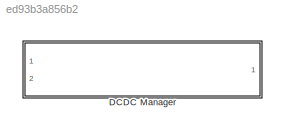
MODEL slx_ed93b3a856b2
KIND library
CONFIG AbsTol = auto
CONFIG EnableMultiTasking = off
CONFIG FixedStep = auto
CONFIG MaxStep = auto
CONFIG MinStep = auto
CONFIG RelTol = 1e-3
CONFIG SampleTimeConstraint = Unconstrained
CONFIG Solver = VariableStepAuto
CONFIG SolverName = VariableStepAuto
CONFIG StartTime = 0.0
CONFIG StopTime = 10.0
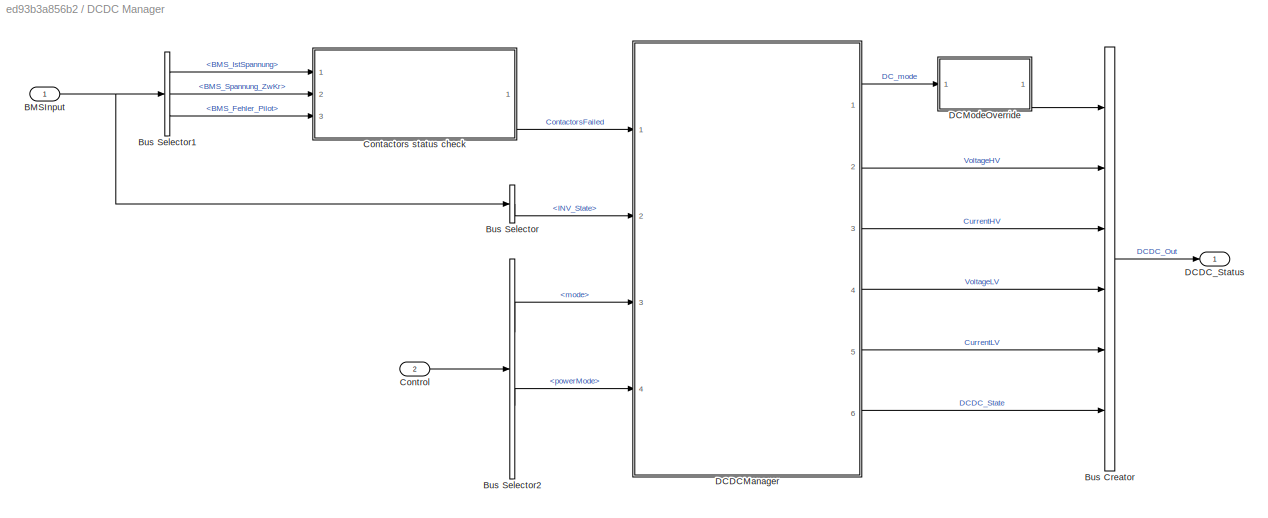
BLOCK [SubSystem] DCDC Manager
  Ports = [2, 1]
  RequestExecContextInheritance = off
  Variant = off
BLOCK [Inport] DCDC Manager/BMSInput
  IconDisplay = Port number
BLOCK [BusCreator] DCDC Manager/Bus Creator
  DisplayOption = bar
  InheritFromInputs = on
  Inputs = 6
  Ports = [6, 1]
BLOCK [BusSelector] DCDC Manager/Bus Selector
  OutputAsBus = off
  OutputSignals = from_CAN.fromHV_CAN.from_MCU.INV_VCU_01.INV_State
  Ports = [1, 1]
BLOCK [BusSelector] DCDC Manager/Bus Selector1
  OutputAsBus = off
  OutputSignals = from_CAN.fromHV_CAN.from_BMSHybrid.BMS_HYB_02.BMS_IstSpannung,from_CAN.fromHV_CAN.from_BMSHybrid.BMS_Spannung_ZwKr,from_CAN.fromHV_CAN.from_BMSHybrid.BMS_HYB_02.BMS_Fehler_Pilot
  Ports = [1, 3]
BLOCK [BusSelector] DCDC Manager/Bus Selector2
  OutputAsBus = off
  OutputSignals = mode,powerMode
  Ports = [1, 2]
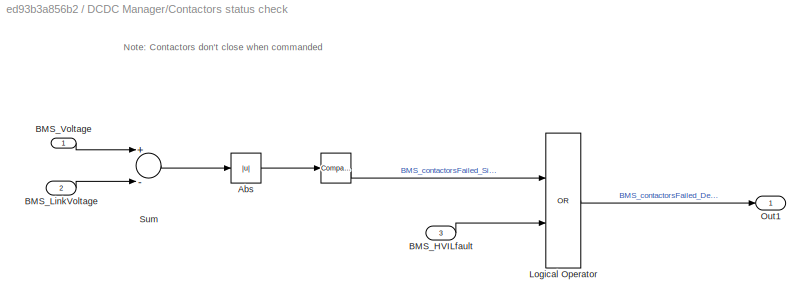
BLOCK [SubSystem] DCDC Manager/Contactors status check
  Ports = [3, 1]
  RequestExecContextInheritance = off
  Variant = off
BLOCK [Reference] DCDC Manager/Contactors status check/   REF=simulink/Logic and Bit
Operations/Compare
To Constant
  Ports = [1, 1]
  SourceBlock = simulink/Logic and Bit\nOperations/Compare\nTo Constant
  SourceProductBaseCode = SL
  SourceProductName = Simulink
  SourceType = Compare To Constant
BLOCK [Abs] DCDC Manager/Contactors status check/Abs
  SaturateOnIntegerOverflow = off
BLOCK [Inport] DCDC Manager/Contactors status check/BMS_HVILfault
  IconDisplay = Port number
  Port = 3
BLOCK [Inport] DCDC Manager/Contactors status check/BMS_LinkVoltage
  IconDisplay = Port number
  Port = 2
BLOCK [Inport] DCDC Manager/Contactors status check/BMS_Voltage
  IconDisplay = Port number
BLOCK [Logic] DCDC Manager/Contactors status check/Logical Operator
  AllPortsSameDT = off
  Operator = OR
  OutDataTypeStr = boolean
  Ports = [2, 1]
BLOCK [Outport] DCDC Manager/Contactors status check/Out1
  IconDisplay = Port number
BLOCK [Sum] DCDC Manager/Contactors status check/Sum
  InputSameDT = off
  Inputs = +-
  OutDataTypeStr = Inherit: Inherit via internal rule
  Ports = [2, 1]
  SaturateOnIntegerOverflow = off
BLOCK [Inport] DCDC Manager/Control
  IconDisplay = Port number
  Port = 2
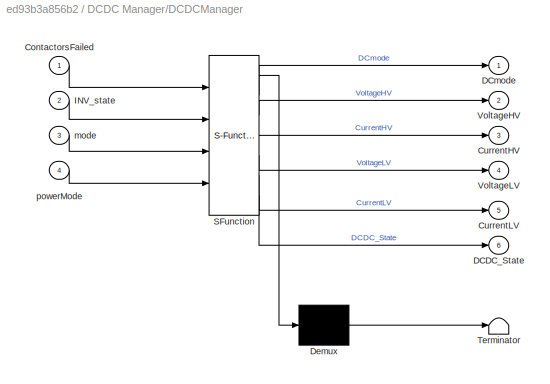
BLOCK [SubSystem] DCDC Manager/DCDCManager
  ErrorFcn = Stateflow.Translate.translate
  PermitHierarchicalResolution = ExplicitOnly
  Ports = [4, 6]
  RequestExecContextInheritance = off
  SFBlockType = Chart
  TreatAsAtomicUnit = on
  Variant = off
BLOCK [Demux] DCDC Manager/DCDCManager/ Demux 
  Outputs = 1
  Ports = [1, 1]
BLOCK [S-Function] DCDC Manager/DCDCManager/ SFunction 
  EnableBusSupport = off
  FunctionName = sf_sfun
  PortCounts = [4 7]
  Ports = [4, 7]
  SFcnIsStateOwnerBlock = off
  SFunctionDeploymentMode = off
  Tag = Stateflow S-Function lib_DCDCManager 37
BLOCK [Terminator] DCDC Manager/DCDCManager/ Terminator 
BLOCK [Inport] DCDC Manager/DCDCManager/ContactorsFailed
  IconDisplay = Port number
BLOCK [Outport] DCDC Manager/DCDCManager/CurrentHV
  IconDisplay = Port number
  Port = 3
BLOCK [Outport] DCDC Manager/DCDCManager/CurrentLV
  IconDisplay = Port number
  Port = 5
BLOCK [Outport] DCDC Manager/DCDCManager/DCDC_State
  IconDisplay = Port number
  Port = 6
BLOCK [Outport] DCDC Manager/DCDCManager/DCmode
  IconDisplay = Port number
BLOCK [Inport] DCDC Manager/DCDCManager/INV_state
  IconDisplay = Port number
  Port = 2
BLOCK [Outport] DCDC Manager/DCDCManager/VoltageHV
  IconDisplay = Port number
  Port = 2
BLOCK [Outport] DCDC Manager/DCDCManager/VoltageLV
  IconDisplay = Port number
  Port = 4
BLOCK [Inport] DCDC Manager/DCDCManager/mode
  IconDisplay = Port number
  Port = 3
BLOCK [Inport] DCDC Manager/DCDCManager/powerMode
  IconDisplay = Port number
  Port = 4
BLOCK [Outport] DCDC Manager/DCDC_Status
  IconDisplay = Port number
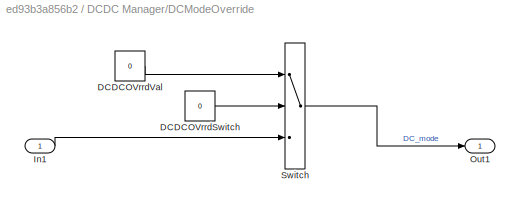
BLOCK [SubSystem] DCDC Manager/DCModeOverride
  Ports = [1, 1]
  RequestExecContextInheritance = off
  Variant = off
BLOCK [Constant] DCDC Manager/DCModeOverride/DCDCOVrrdSwitch
  Value = 0
BLOCK [Constant] DCDC Manager/DCModeOverride/DCDCOVrrdVal
  Value = 0
BLOCK [Inport] DCDC Manager/DCModeOverride/In1
  IconDisplay = Port number
BLOCK [Outport] DCDC Manager/DCModeOverride/Out1
  IconDisplay = Port number
BLOCK [Switch] DCDC Manager/DCModeOverride/Switch
  Criteria = u2 > Threshold
  InputSameDT = off
  SaturateOnIntegerOverflow = off
ANNOTATION DCDC Manager/Contactors status check: Note: Contactors don't close when commanded
NET DCDC Manager/BMSInput:1 -> DCDC Manager/Bus Selector1:1, DCDC Manager/Bus Selector:1
LINE DCDC Manager/Bus Creator:1 -> DCDC Manager/DCDC_Status:1
LINE DCDC Manager/Bus Selector1:1 -> DCDC Manager/Contactors status check:1
LINE DCDC Manager/Bus Selector1:2 -> DCDC Manager/Contactors status check:2
LINE DCDC Manager/Bus Selector1:3 -> DCDC Manager/Contactors status check:3
LINE DCDC Manager/Bus Selector2:1 -> DCDC Manager/DCDCManager:3
LINE DCDC Manager/Bus Selector2:2 -> DCDC Manager/DCDCManager:4
LINE DCDC Manager/Bus Selector:1 -> DCDC Manager/DCDCManager:2
LINE DCDC Manager/Contactors status check/ :1 -> DCDC Manager/Contactors status check/Logical Operator:1
LINE DCDC Manager/Contactors status check/Abs:1 -> DCDC Manager/Contactors status check/ :1
LINE DCDC Manager/Contactors status check/BMS_HVILfault:1 -> DCDC Manager/Contactors status check/Logical Operator:2
LINE DCDC Manager/Contactors status check/BMS_LinkVoltage:1 -> DCDC Manager/Contactors status check/Sum:2
LINE DCDC Manager/Contactors status check/BMS_Voltage:1 -> DCDC Manager/Contactors status check/Sum:1
LINE DCDC Manager/Contactors status check/Logical Operator:1 -> DCDC Manager/Contactors status check/Out1:1
LINE DCDC Manager/Contactors status check/Sum:1 -> DCDC Manager/Contactors status check/Abs:1
LINE DCDC Manager/Contactors status check:1 -> DCDC Manager/DCDCManager:1
LINE DCDC Manager/Control:1 -> DCDC Manager/Bus Selector2:1
LINE DCDC Manager/DCDCManager:1 -> DCDC Manager/DCModeOverride:1
LINE DCDC Manager/DCDCManager:2 -> DCDC Manager/Bus Creator:2
LINE DCDC Manager/DCDCManager:3 -> DCDC Manager/Bus Creator:3
LINE DCDC Manager/DCDCManager:4 -> DCDC Manager/Bus Creator:4
LINE DCDC Manager/DCDCManager:5 -> DCDC Manager/Bus Creator:5
LINE DCDC Manager/DCDCManager:6 -> DCDC Manager/Bus Creator:6
LINE DCDC Manager/DCModeOverride/DCDCOVrrdSwitch:1 -> DCDC Manager/DCModeOverride/Switch:2
LINE DCDC Manager/DCModeOverride/DCDCOVrrdVal:1 -> DCDC Manager/DCModeOverride/Switch:1
LINE DCDC Manager/DCModeOverride/In1:1 -> DCDC Manager/DCModeOverride/Switch:3
LINE DCDC Manager/DCModeOverride/Switch:1 -> DCDC Manager/DCModeOverride/Out1:1
LINE DCDC Manager/DCModeOverride:1 -> DCDC Manager/Bus Creator:1
note: NET lines group one-source signal fan-out (src -> all destinations, sorted); 1:1 wires keep LINE
CHART DCDC Manager/DCDCManager states=5 transitions=6
  STATE_LABEL 'DCDC_Initialization'
  STATE_LABEL 'Initialization\nentry: DCDC_State = 1;'
  STATE_LABEL 'Power_On\nentry: DCmode = 1;\n DCDC_State = 2;\n VoltageHV = 0;\n VoltageLV =14;\n CurrentHV = 20;\n CurrentLV = 173;'
  STATE_LABEL '[ContactorsFailed == 0]'
  STATE_LABEL 'Initialization\nentry: DCDC_State = 1;'
  STATE_LABEL 'Power_On\nentry: DCmode = 1;\n DCDC_State = 2;\n VoltageHV = 0;\n VoltageLV =14;\n CurrentHV = 20;\n CurrentLV = 173;'
  STATE_LABEL 'Delay'
  STATE_LABEL 'DCDC_Off\nentry: DCDC_State = 4;\n DCmode = 0;'
